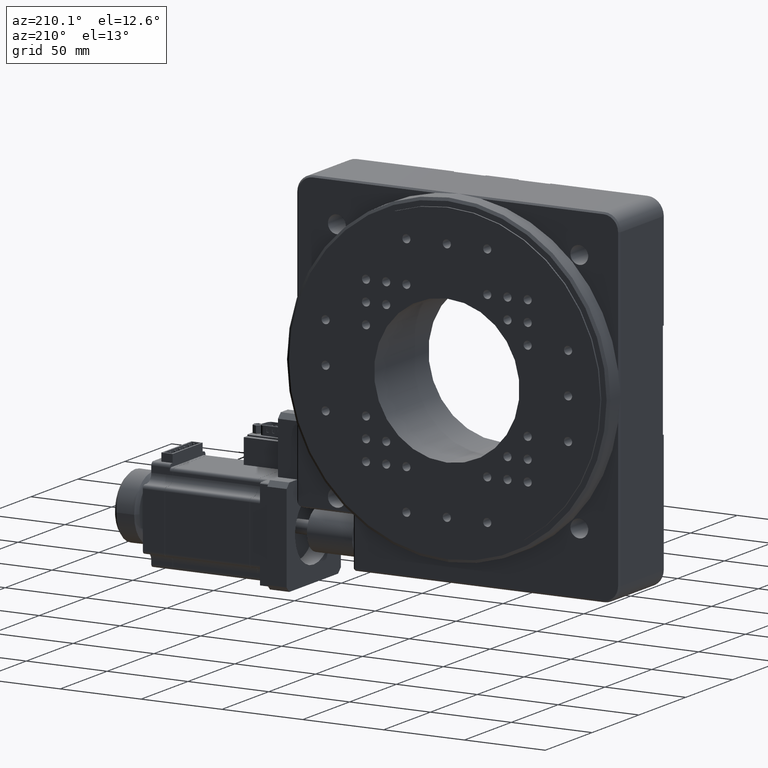
[diagram: clean part render]
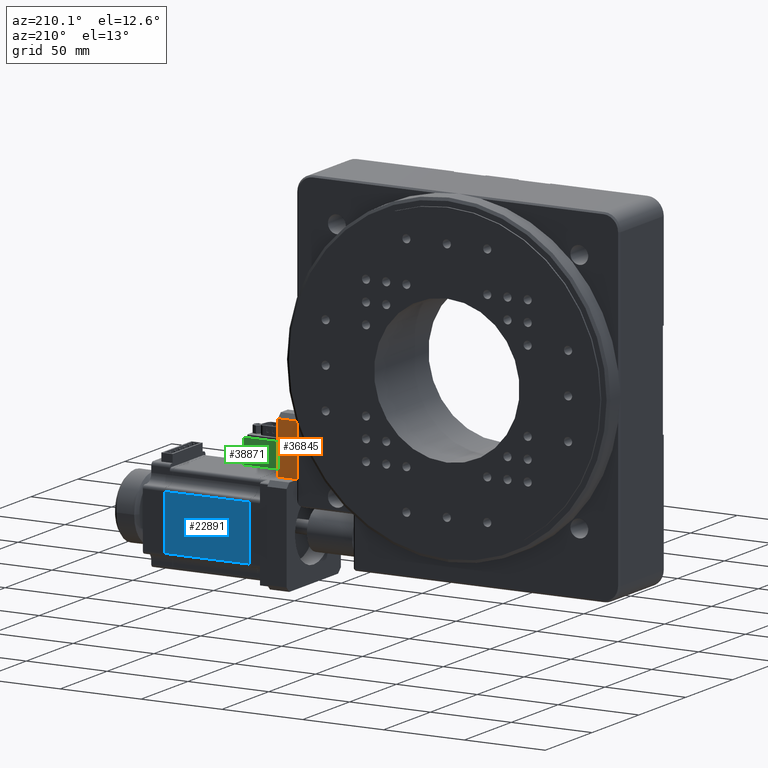
[diagram: same view with three faces highlighted in distinct colors, each labeled with its STEP entity id]
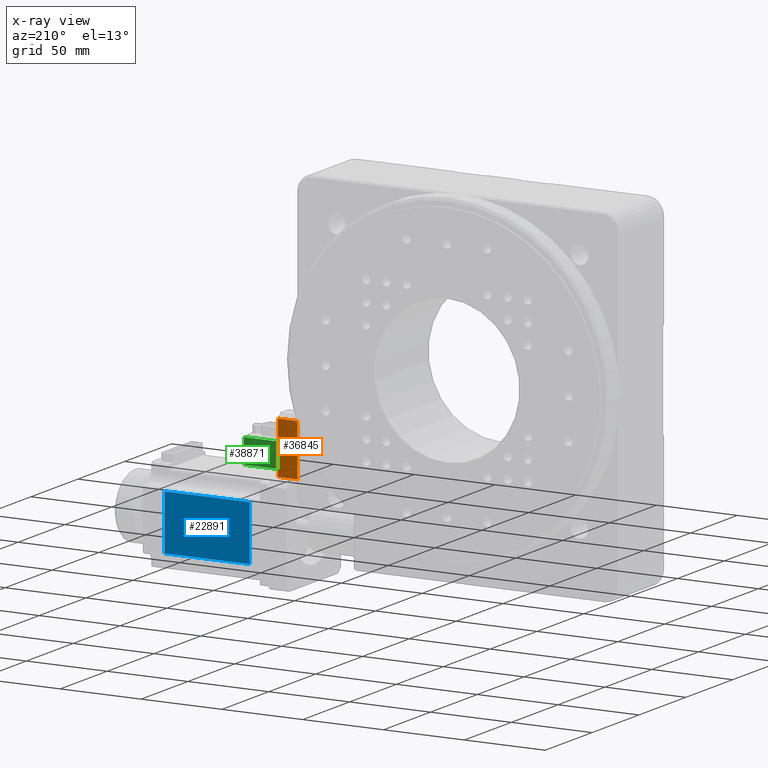
[diagram: x-ray of the same camera — body ghosted, the three highlighted faces saturated]
A machine part, auxiliary view with three faces highlighted in distinct colors.
The next image is the same camera in x-ray (body ghosted, the three faces saturated) — at least one of them is partly hidden behind the body in this view.
Their STEP definitions:

[orange] entity #36845 — the highlighted planar face has unit normal (0, -1, 0).
#1143 = CARTESIAN_POINT ( 'NONE',  ( 212.0000000000000600, 46.99999999999994300, -168.0000000000001100 ) ) ;
#2121 = FACE_OUTER_BOUND ( 'NONE', #47071, .T. ) ;
#4369 = AXIS2_PLACEMENT_3D ( 'NONE', #43602, #39616, #7429 ) ;
#7429 = DIRECTION ( 'NONE',  ( -2.340531700754225500E-016, 2.048408217643522400E-016, 1.000000000000000000 ) ) ;
#7821 = VERTEX_POINT ( 'NONE', #43282 ) ;
#8765 = CARTESIAN_POINT ( 'NONE',  ( 200.0000000000000600, 46.99999999999999300, -136.0000000000000600 ) ) ;
#10112 = ORIENTED_EDGE ( 'NONE', *, *, #30665, .F. ) ;
#12928 = DIRECTION ( 'NONE',  ( 1.000000000000000000, 8.326672684688675300E-017, 2.340531700754225500E-016 ) ) ;
#13848 = EDGE_CURVE ( 'NONE', #7821, #16826, #43968, .T. ) ;
#16826 = VERTEX_POINT ( 'NONE', #8765 ) ;
#17665 = CARTESIAN_POINT ( 'NONE',  ( 200.0000000000000600, 46.99999999999996400, -214.0000000000000300 ) ) ;
#17826 = VECTOR ( 'NONE', #49504, 1000.000000000000000 ) ;
#21032 = CARTESIAN_POINT ( 'NONE',  ( 212.0000000000000600, 47.00000000000000000, -136.0000000000000600 ) ) ;
#22538 = CARTESIAN_POINT ( 'NONE',  ( 212.0000000000000600, 46.99999999999993600, -198.0000000000000000 ) ) ;
#22840 = EDGE_CURVE ( 'NONE', #16826, #50836, #27368, .T. ) ;
#23795 = LINE ( 'NONE', #1143, #29461 ) ;
#24858 = VECTOR ( 'NONE', #29467, 1000.000000000000000 ) ;
#26914 = DIRECTION ( 'NONE',  ( 1.200689743901813000E-017, 2.048408217643522700E-016, 1.000000000000000000 ) ) ;
#27368 = LINE ( 'NONE', #21032, #24858 ) ;
#28951 = CARTESIAN_POINT ( 'NONE',  ( 212.0000000000000600, 46.99999999999994300, -168.0000000000001100 ) ) ;
#29461 = VECTOR ( 'NONE', #12928, 1000.000000000000000 ) ;
#29467 = DIRECTION ( 'NONE',  ( 1.000000000000000000, -4.643222462801467700E-017, 1.043542186005211800E-016 ) ) ;
#30665 = EDGE_CURVE ( 'NONE', #7821, #47412, #23795, .T. ) ;
#30701 = VECTOR ( 'NONE', #26914, 1000.000000000000000 ) ;
#31508 = PLANE ( 'NONE',  #4369 ) ;
#34062 = ORIENTED_EDGE ( 'NONE', *, *, #42814, .F. ) ;
#36845 = ADVANCED_FACE ( 'NONE', ( #2121 ), #31508, .F. ) ;
#38735 = ORIENTED_EDGE ( 'NONE', *, *, #22840, .T. ) ;
#39616 = DIRECTION ( 'NONE',  ( 8.326672684688670400E-017, -1.000000000000000000, 2.048408217643522700E-016 ) ) ;
#39935 = ORIENTED_EDGE ( 'NONE', *, *, #13848, .T. ) ;
#42814 = EDGE_CURVE ( 'NONE', #47412, #50836, #50541, .T. ) ;
#43282 = CARTESIAN_POINT ( 'NONE',  ( 200.0000000000000600, 46.99999999999996400, -168.0000000000001100 ) ) ;
#43602 = CARTESIAN_POINT ( 'NONE',  ( 212.0000000000000600, 46.99999999999995000, -136.0000000000000000 ) ) ;
#43968 = LINE ( 'NONE', #17665, #17826 ) ;
#47071 = EDGE_LOOP ( 'NONE', ( #34062, #10112, #39935, #38735 ) ) ;
#47412 = VERTEX_POINT ( 'NONE', #28951 ) ;
#49504 = DIRECTION ( 'NONE',  ( -1.043542186005174300E-016, 3.345397732392537300E-016, 1.000000000000000000 ) ) ;
#49979 = CARTESIAN_POINT ( 'NONE',  ( 212.0000000000000600, 46.99999999999997900, -136.0000000000000600 ) ) ;
#50541 = LINE ( 'NONE', #22538, #30701 ) ;
#50836 = VERTEX_POINT ( 'NONE', #49979 ) ;

[blue] entity #22891 — the highlighted planar face has unit normal (0, -1, 0).
#1696 = EDGE_CURVE ( 'NONE', #36136, #36622, #9014, .T. ) ;
#2425 = CARTESIAN_POINT ( 'NONE',  ( 216.9999999999999400, 57.49999999999996400, -214.9999999999999400 ) ) ;
#6074 = CARTESIAN_POINT ( 'NONE',  ( 275.9999999999999400, 57.50000000000002100, -214.9999999999998900 ) ) ;
#6397 = DIRECTION ( 'NONE',  ( 6.943570314702294000E-016, -1.210371739530314100E-016, -1.000000000000000000 ) ) ;
#6522 = CARTESIAN_POINT ( 'NONE',  ( 275.9999999999998900, 57.50000000000002100, -180.9999999999998600 ) ) ;
#8340 = EDGE_CURVE ( 'NONE', #42838, #43902, #20514, .T. ) ;
#9014 = LINE ( 'NONE', #2425, #30242 ) ;
#10196 = ORIENTED_EDGE ( 'NONE', *, *, #39371, .F. ) ;
#10466 = AXIS2_PLACEMENT_3D ( 'NONE', #45730, #38081, #6397 ) ;
#15696 = CARTESIAN_POINT ( 'NONE',  ( 223.4999999999999100, 57.49999999999996400, -180.9999999999999100 ) ) ;
#16496 = EDGE_CURVE ( 'NONE', #42838, #36622, #38474, .T. ) ;
#17880 = PLANE ( 'NONE',  #10466 ) ;
#20514 = LINE ( 'NONE', #43380, #29348 ) ;
#22891 = ADVANCED_FACE ( 'NONE', ( #36703 ), #17880, .F. ) ;
#26150 = CARTESIAN_POINT ( 'NONE',  ( 223.4999999999999400, 57.49999999999996400, -214.9999999999999400 ) ) ;
#26430 = CARTESIAN_POINT ( 'NONE',  ( 275.9999999999998900, 57.50000000000002100, -180.9999999999998600 ) ) ;
#29348 = VECTOR ( 'NONE', #47874, 1000.000000000000000 ) ;
#30108 = DIRECTION ( 'NONE',  ( 6.943570314702293000E-016, -1.055179245494927600E-017, -1.000000000000000000 ) ) ;
#30229 = CARTESIAN_POINT ( 'NONE',  ( 223.4999999999999700, 57.49999999999996400, -214.9999999999998900 ) ) ;
#30242 = VECTOR ( 'NONE', #50232, 1000.000000000000000 ) ;
#30317 = EDGE_LOOP ( 'NONE', ( #35673, #40629, #10196, #35552 ) ) ;
#33886 = DIRECTION ( 'NONE',  ( 6.943570314702294000E-016, -1.210371739530314100E-016, -1.000000000000000000 ) ) ;
#35552 = ORIENTED_EDGE ( 'NONE', *, *, #8340, .F. ) ;
#35673 = ORIENTED_EDGE ( 'NONE', *, *, #16496, .T. ) ;
#36136 = VERTEX_POINT ( 'NONE', #26150 ) ;
#36622 = VERTEX_POINT ( 'NONE', #6074 ) ;
#36703 = FACE_OUTER_BOUND ( 'NONE', #30317, .T. ) ;
#38081 = DIRECTION ( 'NONE',  ( 9.381252327465557100E-016, -1.000000000000000000, 1.210371739530320500E-016 ) ) ;
#38474 = LINE ( 'NONE', #26430, #40986 ) ;
#39371 = EDGE_CURVE ( 'NONE', #43902, #36136, #50070, .T. ) ;
#40629 = ORIENTED_EDGE ( 'NONE', *, *, #1696, .F. ) ;
#40986 = VECTOR ( 'NONE', #30108, 1000.000000000000000 ) ;
#42838 = VERTEX_POINT ( 'NONE', #6522 ) ;
#43380 = CARTESIAN_POINT ( 'NONE',  ( 216.9999999999999400, 57.49999999999996400, -180.9999999999999100 ) ) ;
#43902 = VERTEX_POINT ( 'NONE', #15696 ) ;
#45730 = CARTESIAN_POINT ( 'NONE',  ( 289.5000000000000000, 57.50000000000002800, -214.9999999999998300 ) ) ;
#47874 = DIRECTION ( 'NONE',  ( -1.000000000000000000, -9.381252327465557100E-016, -6.943570314702293000E-016 ) ) ;
#50070 = LINE ( 'NONE', #30229, #51319 ) ;
#50232 = DIRECTION ( 'NONE',  ( 1.000000000000000000, 9.381252327465557100E-016, 6.943570314702293000E-016 ) ) ;
#51319 = VECTOR ( 'NONE', #33886, 1000.000000000000000 ) ;

[green] entity #38871 — the highlighted planar face has unit normal (0, -1, 0).
#832 = EDGE_CURVE ( 'NONE', #29531, #39602, #35676, .T. ) ;
#875 = VERTEX_POINT ( 'NONE', #11554 ) ;
#1001 = FACE_OUTER_BOUND ( 'NONE', #28769, .T. ) ;
#2044 = VECTOR ( 'NONE', #7714, 1000.000000000000000 ) ;
#4414 = VECTOR ( 'NONE', #46862, 1000.000000000000000 ) ;
#7517 = CARTESIAN_POINT ( 'NONE',  ( 212.0000000000000600, 33.50000000000000700, -152.0000000000002000 ) ) ;
#7714 = DIRECTION ( 'NONE',  ( -1.200689743901813000E-017, -2.048408217643522700E-016, -1.000000000000000000 ) ) ;
#11554 = CARTESIAN_POINT ( 'NONE',  ( 241.0000000000000900, 33.50000000000005000, -152.0000000000002000 ) ) ;
#16595 = LINE ( 'NONE', #36831, #47108 ) ;
#18377 = ORIENTED_EDGE ( 'NONE', *, *, #832, .F. ) ;
#18715 = EDGE_CURVE ( 'NONE', #875, #29531, #33138, .T. ) ;
#19529 = CARTESIAN_POINT ( 'NONE',  ( 212.0000000000000600, 33.50000000000002800, -167.1403120539225100 ) ) ;
#19573 = CARTESIAN_POINT ( 'NONE',  ( 212.0000000000000600, 33.50000000000001400, -198.0000000000000000 ) ) ;
#20826 = CARTESIAN_POINT ( 'NONE',  ( 200.0000000000000600, 33.50000000000004300, -152.0000000000002000 ) ) ;
#21626 = EDGE_CURVE ( 'NONE', #48104, #875, #16595, .T. ) ;
#22485 = VECTOR ( 'NONE', #29466, 1000.000000000000000 ) ;
#24854 = DIRECTION ( 'NONE',  ( -2.340531700754225500E-016, 2.048408217643522400E-016, 1.000000000000000000 ) ) ;
#25496 = DIRECTION ( 'NONE',  ( -2.340531700754225500E-016, 2.048408217643522400E-016, 1.000000000000000000 ) ) ;
#28184 = ORIENTED_EDGE ( 'NONE', *, *, #21626, .F. ) ;
#28769 = EDGE_LOOP ( 'NONE', ( #28901, #28184, #32578, #18377 ) ) ;
#28901 = ORIENTED_EDGE ( 'NONE', *, *, #18715, .F. ) ;
#29077 = PLANE ( 'NONE',  #51527 ) ;
#29466 = DIRECTION ( 'NONE',  ( -1.000000000000000000, -8.326672684688667900E-017, 1.044294593834668000E-016 ) ) ;
#29531 = VERTEX_POINT ( 'NONE', #7517 ) ;
#31233 = LINE ( 'NONE', #38521, #4414 ) ;
#32578 = ORIENTED_EDGE ( 'NONE', *, *, #50178, .F. ) ;
#33138 = LINE ( 'NONE', #33448, #22485 ) ;
#33448 = CARTESIAN_POINT ( 'NONE',  ( 200.0000000000000600, 33.50000000000004300, -152.0000000000002000 ) ) ;
#35676 = LINE ( 'NONE', #19573, #2044 ) ;
#36696 = DIRECTION ( 'NONE',  ( 8.326672684688670400E-017, -1.000000000000000000, 2.048408217643522700E-016 ) ) ;
#36831 = CARTESIAN_POINT ( 'NONE',  ( 241.0000000000000900, 33.50000000000005000, -152.0000000000002000 ) ) ;
#38521 = CARTESIAN_POINT ( 'NONE',  ( 200.0000000000000600, 33.50000000000004300, -167.1403120539225100 ) ) ;
#38871 = ADVANCED_FACE ( 'NONE', ( #1001 ), #29077, .F. ) ;
#39602 = VERTEX_POINT ( 'NONE', #19529 ) ;
#46862 = DIRECTION ( 'NONE',  ( 1.000000000000000000, 8.326672684688675300E-017, 2.340531700754225500E-016 ) ) ;
#47108 = VECTOR ( 'NONE', #25496, 1000.000000000000000 ) ;
#48104 = VERTEX_POINT ( 'NONE', #50200 ) ;
#50178 = EDGE_CURVE ( 'NONE', #39602, #48104, #31233, .T. ) ;
#50200 = CARTESIAN_POINT ( 'NONE',  ( 241.0000000000001100, 33.50000000000005000, -167.1403120539224900 ) ) ;
#51527 = AXIS2_PLACEMENT_3D ( 'NONE', #20826, #36696, #24854 ) ;